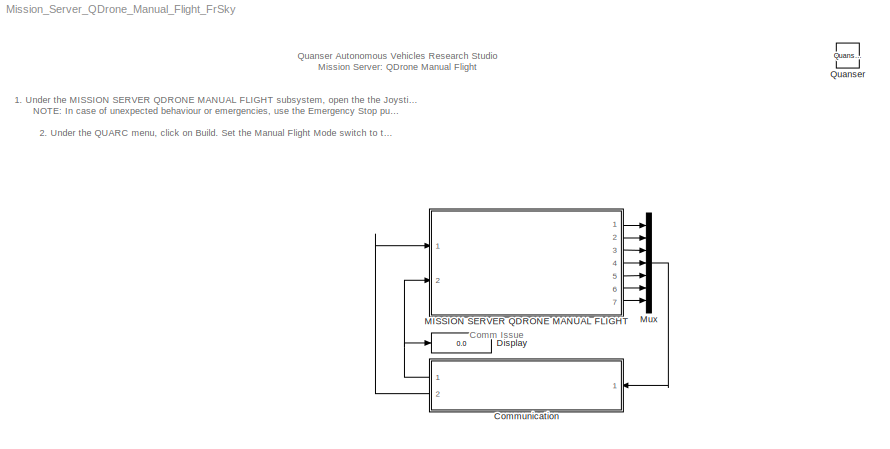
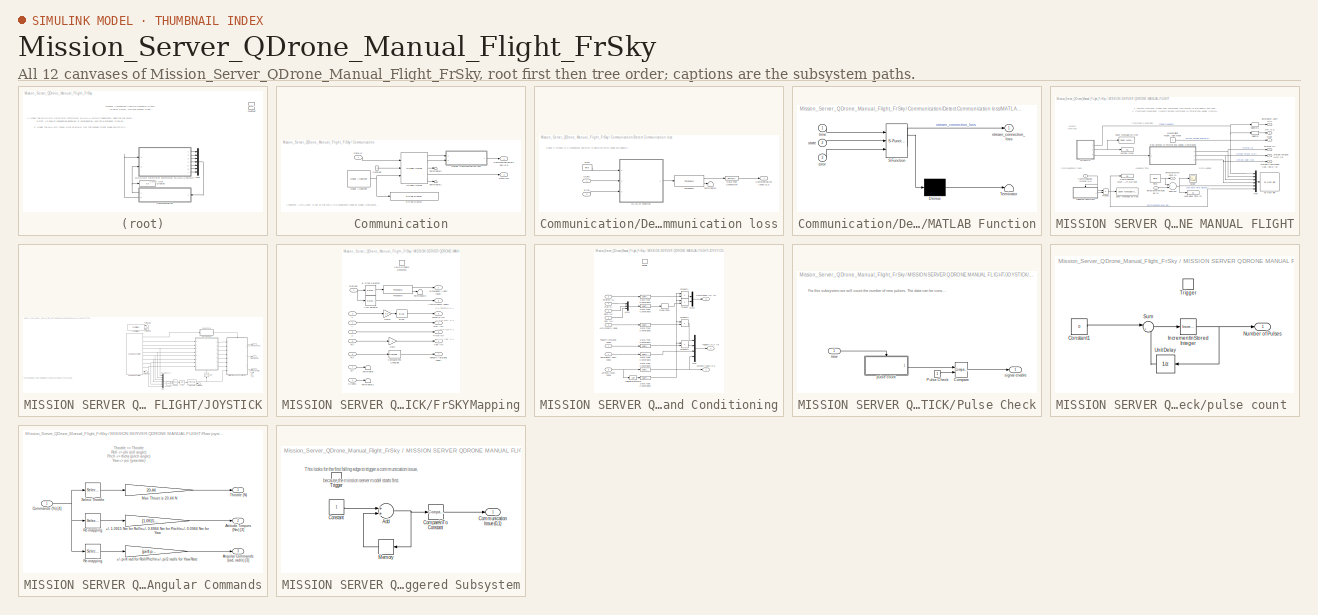
[diagram: thumbnail index - all 12 canvases of the model, root first then tree order]
MODEL Mission_Server_QDrone_Manual_Flight_FrSky
KIND model
BLOCK [SubSystem] Communication
  Ports = [1, 2]
  RequestExecContextInheritance = off
  SID = 3974
BLOCK [Outport] Communication/Communication\nIssue (0,1)
  IconDisplay = Port number
  SID = 4276
BLOCK [Constant] Communication/Constant
  SID = 3844
BLOCK [Inport] Communication/Data In
  IconDisplay = Port number
  SID = 3975
BLOCK [Outport] Communication/Data Out
  IconDisplay = Port number
  Port = 2
  SID = 3978
BLOCK [SubSystem] Communication/Detect Communication loss
  Ports = [2, 1]
  RequestExecContextInheritance = off
  SID = 3979
BLOCK [Outport] Communication/Detect Communication loss/Communication Issue (0,1)
  IconDisplay = Port number
  SID = 3987
BLOCK [DataTypeConversion] Communication/Detect Communication loss/Data Type Conversion
  RndMeth = Floor
  SID = 3982
  SaturateOnIntegerOverflow = off
BLOCK [Inport] Communication/Detect Communication loss/Error
  IconDisplay = Port number
  Port = 2
  SID = 3981
BLOCK [SubSystem] Communication/Detect Communication loss/MATLAB Function
  ErrorFcn = Stateflow.Translate.translate
  PermitHierarchicalResolution = ExplicitOnly
  Ports = [3, 1]
  RequestExecContextInheritance = off
  SFBlockType = MATLAB Function
  SID = 3983
  TreatAsAtomicUnit = on
BLOCK [Demux] Communication/Detect Communication loss/MATLAB Function/ Demux 
  DisplayOption = bar
  Outputs = 1
  Ports = [1, 1]
  SID = 3983::65
BLOCK [S-Function] Communication/Detect Communication loss/MATLAB Function/ SFunction 
  EnableBusSupport = off
  FunctionName = sf_sfun
  PortCounts = [3 2]
  Ports = [3, 2]
  SFcnIsStateOwnerBlock = off
  SFunctionDeploymentMode = off
  SID = 3983::64
  Tag = Stateflow S-Function Mission_Server_QDrone_Manual_Flight_FrSky 3
BLOCK [Terminator] Communication/Detect Communication loss/MATLAB Function/ Terminator 
  SID = 3983::66
BLOCK [Inport] Communication/Detect Communication loss/MATLAB Function/error
  IconDisplay = Port number
  Port = 3
  SID = 3983::23
BLOCK [Inport] Communication/Detect Communication loss/MATLAB Function/state
  IconDisplay = Port number
  Port = 2
  SID = 3983::22
BLOCK [Outport] Communication/Detect Communication loss/MATLAB Function/stream_connection_loss
  IconDisplay = Port number
  SID = 3983::5
BLOCK [Inport] Communication/Detect Communication loss/MATLAB Function/time
  IconDisplay = Port number
  SID = 3983::1
BLOCK [Inport] Communication/Detect Communication loss/State
  IconDisplay = Port number
  SID = 3980
BLOCK [Terminator] Communication/Detect Communication loss/Terminator2
  SID = 3984
BLOCK [Reference] Communication/Detect Communication loss/Threshold  REF=quarc_library/Discontinuities/Threshold
  Ports = [1, 2]
  SID = 3985
  SourceBlock = quarc_library/Discontinuities/Threshold
  SourceProductName = QUARC Targets
  SourceType = Threshold
  duration = 0.1
  operator = >=
  param_src = Specify via dialog
  threshold = 0.5
BLOCK [Reference] Communication/Detect Communication loss/Time  REF=quarc_library/Sources/Time/Time
  MultiThreadCoSim = auto
  Ports = [0, 1]
  SID = 3986
  SourceBlock = quarc_library/Sources/Time/Time
  SourceProductName = QUARC Targets
  SourceType = Time
  sample_time = qc_get_step_size
  time_source = Wall clock
BLOCK [Reference] Communication/Model Argument  REF=quarc_library/Sources/Signals/Model Argument
  AttributesFormatString = (-%<argument_name>)
  MultiThreadCoSim = auto
  Ports = [0, 1]
  SID = 3845
  SourceBlock = quarc_library/Sources/Signals/Model Argument
  SourceProductName = QUARC Targets
  SourceType = Model Argument
  argument_name = URI_Host
  data_type = char
  data_type_mode = Specify via dialog
  default_value = 0
  has_value = on
  max_length = 80
  variable_size = off
BLOCK [Reference] Communication/Stream Server  REF=quarc_library/Communications/Basic/Stream Server
  MultiThreadCoSim = auto
  Ports = [3, 5]
  SID = 3861
  SourceBlock = quarc_library/Communications/Basic/Stream Server
  SourceProductName = QUARC Targets
  SourceType = Stream Server
  active = off
  apply_uri_to_all_configs = off
  byte_order = little endian (Intel - LSB first)
  data_type = Inherited via back propagation
  default_value = zeros(1,2)
  implementation = Use blocking I/O in a separate thread
  max_dimensions = -1
  optimization = Minimum latency
  receive_buffer_size = 1460
  receive_dimensions = off
  receive_fifo_size = 1000
  receive_options = Receive most recent data
  receive_priority = 0
  sample_time = qc_get_step_size
  send_buffer_size = 1460
  send_dimensions = off
  send_fifo_size = 1000
  send_options = Send most recent data
  send_priority = 0
  type_expr = BusObject
  uri = tcpip://localhost:18877
  uri_source = External input port
BLOCK [Reference] Communication/String Display   REF=quarc_library/Strings/String Display
  MultiThreadCoSim = auto
  Ports = [1]
  SID = 3862
  SourceBlock = quarc_library/Strings/String Display
  SourceProductName = QUARC Targets
  SourceType = String Display
  alignment = center
  display_mode = Single line
  sample_time = -1
  use_new = off
BLOCK [Terminator] Communication/Terminator1
  SID = 3863
BLOCK [Terminator] Communication/Terminator2
  SID = 3864
BLOCK [Display] Display
  Decimation = 1
  Ports = [1]
  SID = 4419
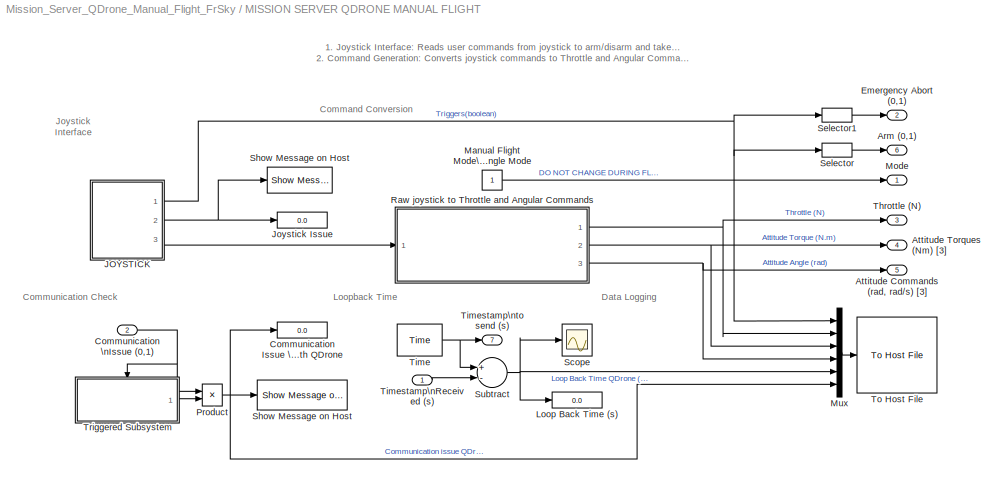
BLOCK [SubSystem] MISSION SERVER QDRONE MANUAL FLIGHT
  Ports = [2, 7]
  RequestExecContextInheritance = off
  SID = 4279
BLOCK [Outport] MISSION SERVER QDRONE MANUAL FLIGHT/Arm (0,1)
  IconDisplay = Port number
  Port = 6
  SID = 4405
BLOCK [Outport] MISSION SERVER QDRONE MANUAL FLIGHT/Attitude Commands (rad, rad//s) [3]
  IconDisplay = Port number
  Port = 5
  SID = 4404
BLOCK [Outport] MISSION SERVER QDRONE MANUAL FLIGHT/Attitude Torques (Nm) [3]
  IconDisplay = Port number
  Port = 4
  SID = 4440
BLOCK [Display] MISSION SERVER QDRONE MANUAL FLIGHT/Communication Issue \nwith QDrone
  Decimation = 1
  Ports = [1]
  SID = 4282
BLOCK [Inport] MISSION SERVER QDRONE MANUAL FLIGHT/Communication \nIssue (0,1)
  IconDisplay = Port number
  Port = 2
  SID = 4281
BLOCK [Outport] MISSION SERVER QDRONE MANUAL FLIGHT/Emergency Abort (0,1)
  IconDisplay = Port number
  Port = 2
  SID = 4402
BLOCK [SubSystem] MISSION SERVER QDRONE MANUAL FLIGHT/JOYSTICK
  Ports = [0, 3]
  RequestExecContextInheritance = off
  SID = 4558
BLOCK [Logic] MISSION SERVER QDRONE MANUAL FLIGHT/JOYSTICK/AND
  AllPortsSameDT = off
  Inputs = 1
  OutDataTypeStr = boolean
  Ports = [1, 1]
  SID = 4559
BLOCK [Outport] MISSION SERVER QDRONE MANUAL FLIGHT/JOYSTICK/Commands (%) [4]
  IconDisplay = Port number
  Port = 3
  SID = 4646
BLOCK [Reference] MISSION SERVER QDRONE MANUAL FLIGHT/JOYSTICK/Compare  REF=quarc_library/Logic Operations/Compare
  MultiThreadCoSim = auto
  Ports = [2, 1]
  SID = 4560
  SourceBlock = quarc_library/Logic Operations/Compare
  SourceProductName = QUARC Targets
  SourceType = Compare
  operator = ==
  output_data_type = boolean
BLOCK [Constant] MISSION SERVER QDRONE MANUAL FLIGHT/JOYSTICK/Constant
  SID = 4561
  Value = -1*ones(1,6)
BLOCK [SubSystem] MISSION SERVER QDRONE MANUAL FLIGHT/JOYSTICK/FrSKYMapping
  Ports = [8, 7, 1]
  RequestExecContextInheritance = off
  SID = 4562
BLOCK [Selector] MISSION SERVER QDRONE MANUAL FLIGHT/JOYSTICK/FrSKYMapping/Arm selector
  IndexOptions = Index vector (dialog)
  Indices = [2]
  InputPortWidth = 32
  OutputSizes = 1
  Ports = [1, 1]
  SID = 4572
BLOCK [Outport] MISSION SERVER QDRONE MANUAL FLIGHT/JOYSTICK/FrSKYMapping/Arm//Disarm (bool) 
  IconDisplay = Port number
  Port = 6
  SID = 4587
BLOCK [Bias] MISSION SERVER QDRONE MANUAL FLIGHT/JOYSTICK/FrSKYMapping/Bias
  Bias = 0.5
  SID = 4573
  SaturateOnIntegerOverflow = off
BLOCK [Inport] MISSION SERVER QDRONE MANUAL FLIGHT/JOYSTICK/FrSKYMapping/Buttons
  IconDisplay = Port number
  SID = 4563
BLOCK [Reference] MISSION SERVER QDRONE MANUAL FLIGHT/JOYSTICK/FrSKYMapping/Compare\nTo Constant  REF=simulink/Logic and Bit\nOperations/Compare\nTo Constant
  OutDataTypeStr = boolean
  Ports = [1, 1]
  SID = 4574
  SourceBlock = simulink/Logic and Bit\nOperations/Compare\nTo Constant
  SourceProductBaseCode = SL
  SourceType = Compare To Constant
  ZeroCross = on
  const = -0.5
  relop = >=
BLOCK [Selector] MISSION SERVER QDRONE MANUAL FLIGHT/JOYSTICK/FrSKYMapping/E-Stop Selector
  IndexOptions = Index vector (dialog)
  Indices = [1]
  InputPortWidth = 32
  OutputSizes = 1
  Ports = [1, 1]
  SID = 4575
BLOCK [Outport] MISSION SERVER QDRONE MANUAL FLIGHT/JOYSTICK/FrSKYMapping/Emergency Abort (bool)
  IconDisplay = Port number
  SID = 4582
BLOCK [Gain] MISSION SERVER QDRONE MANUAL FLIGHT/JOYSTICK/FrSKYMapping/Gain
  Gain = -1
  OutDataTypeStr = Inherit: Inherit via internal rule
  ParamDataTypeStr = Inherit: Inherit via internal rule
  SID = 4576
  SaturateOnIntegerOverflow = off
BLOCK [Gain] MISSION SERVER QDRONE MANUAL FLIGHT/JOYSTICK/FrSKYMapping/Gain1
  Gain = 0.5
  OutDataTypeStr = Inherit: Inherit via internal rule
  ParamDataTypeStr = Inherit: Inherit via internal rule
  SID = 4577
  SaturateOnIntegerOverflow = off
BLOCK [Outport] MISSION SERVER QDRONE MANUAL FLIGHT/JOYSTICK/FrSKYMapping/Pitch (%)
  IconDisplay = Port number
  Port = 5
  SID = 4586
BLOCK [Outport] MISSION SERVER QDRONE MANUAL FLIGHT/JOYSTICK/FrSKYMapping/Roll (%)
  IconDisplay = Port number
  Port = 4
  SID = 4585
BLOCK [Inport] MISSION SERVER QDRONE MANUAL FLIGHT/JOYSTICK/FrSKYMapping/Rx
  IconDisplay = Port number
  Port = 6
  SID = 4568
BLOCK [Inport] MISSION SERVER QDRONE MANUAL FLIGHT/JOYSTICK/FrSKYMapping/Ry
  IconDisplay = Port number
  Port = 7
  SID = 4569
BLOCK [Inport] MISSION SERVER QDRONE MANUAL FLIGHT/JOYSTICK/FrSKYMapping/Rz
  IconDisplay = Port number
  Port = 8
  SID = 4570
BLOCK [Inport] MISSION SERVER QDRONE MANUAL FLIGHT/JOYSTICK/FrSKYMapping/Sliders
  IconDisplay = Port number
  Port = 2
  SID = 4564
BLOCK [Outport] MISSION SERVER QDRONE MANUAL FLIGHT/JOYSTICK/FrSKYMapping/Takeoff//Autoland (bool)
  IconDisplay = Port number
  Port = 7
  SID = 4588
BLOCK [Terminator] MISSION SERVER QDRONE MANUAL FLIGHT/JOYSTICK/FrSKYMapping/Terminator
  SID = 4578
BLOCK [Terminator] MISSION SERVER QDRONE MANUAL FLIGHT/JOYSTICK/FrSKYMapping/Terminator1
  SID = 4579
BLOCK [Terminator] MISSION SERVER QDRONE MANUAL FLIGHT/JOYSTICK/FrSKYMapping/Terminator2
  SID = 4580
BLOCK [Reference] MISSION SERVER QDRONE MANUAL FLIGHT/JOYSTICK/FrSKYMapping/Threshold  REF=quarc_library/Discontinuities/Threshold
  Ports = [1, 2]
  SID = 4581
  SourceBlock = quarc_library/Discontinuities/Threshold
  SourceProductName = QUARC Targets
  SourceType = Threshold
  duration = 0.2
  operator = >=
  param_src = Specify via dialog
  threshold = 0.5
BLOCK [Outport] MISSION SERVER QDRONE MANUAL FLIGHT/JOYSTICK/FrSKYMapping/Throttle (%)
  IconDisplay = Port number
  Port = 3
  SID = 4584
BLOCK [EnablePort] MISSION SERVER QDRONE MANUAL FLIGHT/JOYSTICK/FrSKYMapping/Valid Signals Detected
  Ports = []
  SID = 4571
BLOCK [Outport] MISSION SERVER QDRONE MANUAL FLIGHT/JOYSTICK/FrSKYMapping/Yaw (%)
  IconDisplay = Port number
  Port = 2
  SID = 4583
BLOCK [Inport] MISSION SERVER QDRONE MANUAL FLIGHT/JOYSTICK/FrSKYMapping/x
  IconDisplay = Port number
  Port = 3
  SID = 4565
BLOCK [Inport] MISSION SERVER QDRONE MANUAL FLIGHT/JOYSTICK/FrSKYMapping/y
  IconDisplay = Port number
  Port = 4
  SID = 4566
BLOCK [Inport] MISSION SERVER QDRONE MANUAL FLIGHT/JOYSTICK/FrSKYMapping/z
  IconDisplay = Port number
  Port = 5
  SID = 4567
BLOCK [Reference] MISSION SERVER QDRONE MANUAL FLIGHT/JOYSTICK/Host Game Controller  REF=quarc_library/Devices/Peripherals/Host/Host Game Controller
  MultiThreadCoSim = auto
  Ports = [0, 10]
  SID = 4593
  SourceBlock = quarc_library/Devices/Peripherals/Host/Host Game Controller
  SourceProductName = QUARC Targets
  SourceType = Host Game Controller
  auto_center = off
  buffer_size = 20
  controller = 1
  deadzone = []
  debug_mode = off
  enabled = on
  object_name = Host-1
  sample_time = qc_get_step_size
  saturation = []
BLOCK [Reference] MISSION SERVER QDRONE MANUAL FLIGHT/JOYSTICK/Host Initialize  REF=quarc_library/Devices/Peripherals/Host/Host Initialize
  MultiThreadCoSim = auto
  Ports = [0, 2]
  SID = 4594
  SourceBlock = quarc_library/Devices/Peripherals/Host/Host Initialize
  SourceProductName = QUARC Targets
  SourceType = Host Initialize
  active = on
  apply_uri_to_all_configs = on
  object_name = Host-1
  receive_buffer_size = 1000
  run_client = on
  sample_time = qc_get_step_size
  send_buffer_size = 1000
  thread_priority = 0
  uri = tcpip://localhost:18001
  uri_source = Use external mode communications
  use_window = off
  window_position = []
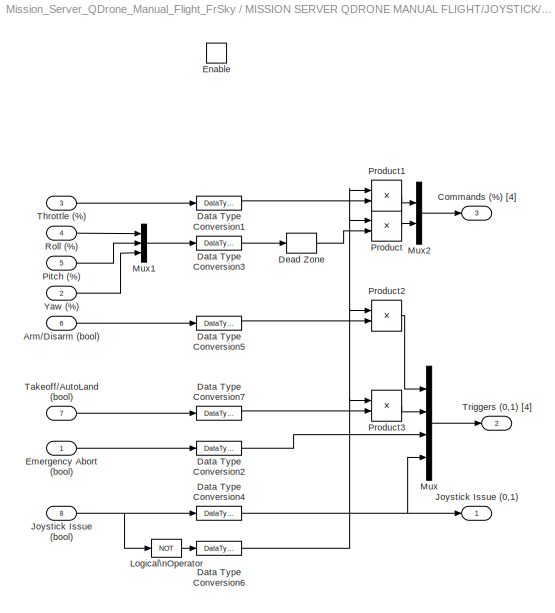
BLOCK [SubSystem] MISSION SERVER QDRONE MANUAL FLIGHT/JOYSTICK/Initialization\nand Conditioning
  Ports = [8, 3, 1]
  RequestExecContextInheritance = off
  SID = 4595
  TreatAsAtomicUnit = on
BLOCK [Inport] MISSION SERVER QDRONE MANUAL FLIGHT/JOYSTICK/Initialization\nand Conditioning/Arm//Disarm (bool)
  IconDisplay = Port number
  Port = 6
  SID = 4601
BLOCK [Outport] MISSION SERVER QDRONE MANUAL FLIGHT/JOYSTICK/Initialization\nand Conditioning/Commands (%) [4]
  IconDisplay = Port number
  InitialOutput = 0
  Port = 3
  SID = 4623
BLOCK [DataTypeConversion] MISSION SERVER QDRONE MANUAL FLIGHT/JOYSTICK/Initialization\nand Conditioning/Data Type Conversion1
  RndMeth = Floor
  SID = 4605
  SaturateOnIntegerOverflow = off
BLOCK [DataTypeConversion] MISSION SERVER QDRONE MANUAL FLIGHT/JOYSTICK/Initialization\nand Conditioning/Data Type Conversion2
  RndMeth = Floor
  SID = 4606
  SaturateOnIntegerOverflow = off
BLOCK [DataTypeConversion] MISSION SERVER QDRONE MANUAL FLIGHT/JOYSTICK/Initialization\nand Conditioning/Data Type Conversion3
  RndMeth = Floor
  SID = 4607
  SaturateOnIntegerOverflow = off
BLOCK [DataTypeConversion] MISSION SERVER QDRONE MANUAL FLIGHT/JOYSTICK/Initialization\nand Conditioning/Data Type Conversion4
  RndMeth = Floor
  SID = 4608
  SaturateOnIntegerOverflow = off
BLOCK [DataTypeConversion] MISSION SERVER QDRONE MANUAL FLIGHT/JOYSTICK/Initialization\nand Conditioning/Data Type Conversion5
  RndMeth = Floor
  SID = 4609
  SaturateOnIntegerOverflow = off
BLOCK [DataTypeConversion] MISSION SERVER QDRONE MANUAL FLIGHT/JOYSTICK/Initialization\nand Conditioning/Data Type Conversion6
  RndMeth = Floor
  SID = 4610
  SaturateOnIntegerOverflow = off
BLOCK [DataTypeConversion] MISSION SERVER QDRONE MANUAL FLIGHT/JOYSTICK/Initialization\nand Conditioning/Data Type Conversion7
  RndMeth = Floor
  SID = 4611
  SaturateOnIntegerOverflow = off
BLOCK [DeadZone] MISSION SERVER QDRONE MANUAL FLIGHT/JOYSTICK/Initialization\nand Conditioning/Dead Zone
  LowerValue = -0.01
  SID = 4612
  UpperValue = 0.01
BLOCK [Inport] MISSION SERVER QDRONE MANUAL FLIGHT/JOYSTICK/Initialization\nand Conditioning/Emergency Abort (bool)
  IconDisplay = Port number
  SID = 4596
BLOCK [EnablePort] MISSION SERVER QDRONE MANUAL FLIGHT/JOYSTICK/Initialization\nand Conditioning/Enable
  Ports = []
  SID = 4604
  StatesWhenEnabling = reset
BLOCK [Outport] MISSION SERVER QDRONE MANUAL FLIGHT/JOYSTICK/Initialization\nand Conditioning/Joystick Issue (0,1)
  IconDisplay = Port number
  InitialOutput = 0
  SID = 4621
BLOCK [Inport] MISSION SERVER QDRONE MANUAL FLIGHT/JOYSTICK/Initialization\nand Conditioning/Joystick Issue (bool)
  IconDisplay = Port number
  Port = 8
  SID = 4603
BLOCK [Logic] MISSION SERVER QDRONE MANUAL FLIGHT/JOYSTICK/Initialization\nand Conditioning/Logical\nOperator
  AllPortsSameDT = off
  Operator = NOT
  OutDataTypeStr = boolean
  Ports = [1, 1]
  SID = 4613
BLOCK [Mux] MISSION SERVER QDRONE MANUAL FLIGHT/JOYSTICK/Initialization\nand Conditioning/Mux
  DisplayOption = bar
  Ports = [4, 1]
  SID = 4614
BLOCK [Mux] MISSION SERVER QDRONE MANUAL FLIGHT/JOYSTICK/Initialization\nand Conditioning/Mux1
  DisplayOption = bar
  Inputs = 3
  Ports = [3, 1]
  SID = 4615
BLOCK [Mux] MISSION SERVER QDRONE MANUAL FLIGHT/JOYSTICK/Initialization\nand Conditioning/Mux2
  DisplayOption = bar
  Inputs = 2
  Ports = [2, 1]
  SID = 4616
BLOCK [Inport] MISSION SERVER QDRONE MANUAL FLIGHT/JOYSTICK/Initialization\nand Conditioning/Pitch (%)
  IconDisplay = Port number
  Port = 5
  SID = 4600
BLOCK [Product] MISSION SERVER QDRONE MANUAL FLIGHT/JOYSTICK/Initialization\nand Conditioning/Product
  InputSameDT = off
  OutDataTypeStr = Inherit: Inherit via internal rule
  Ports = [2, 1]
  RndMeth = Floor
  SID = 4617
  SaturateOnIntegerOverflow = off
BLOCK [Product] MISSION SERVER QDRONE MANUAL FLIGHT/JOYSTICK/Initialization\nand Conditioning/Product1
  InputSameDT = off
  OutDataTypeStr = Inherit: Inherit via internal rule
  Ports = [2, 1]
  RndMeth = Floor
  SID = 4618
  SaturateOnIntegerOverflow = off
BLOCK [Product] MISSION SERVER QDRONE MANUAL FLIGHT/JOYSTICK/Initialization\nand Conditioning/Product2
  InputSameDT = off
  OutDataTypeStr = Inherit: Inherit via internal rule
  Ports = [2, 1]
  RndMeth = Floor
  SID = 4619
  SaturateOnIntegerOverflow = off
BLOCK [Product] MISSION SERVER QDRONE MANUAL FLIGHT/JOYSTICK/Initialization\nand Conditioning/Product3
  InputSameDT = off
  OutDataTypeStr = Inherit: Inherit via internal rule
  Ports = [2, 1]
  RndMeth = Floor
  SID = 4620
  SaturateOnIntegerOverflow = off
BLOCK [Inport] MISSION SERVER QDRONE MANUAL FLIGHT/JOYSTICK/Initialization\nand Conditioning/Roll (%)
  IconDisplay = Port number
  Port = 4
  SID = 4599
BLOCK [Inport] MISSION SERVER QDRONE MANUAL FLIGHT/JOYSTICK/Initialization\nand Conditioning/Takeoff//AutoLand (bool)
  IconDisplay = Port number
  Port = 7
  SID = 4602
BLOCK [Inport] MISSION SERVER QDRONE MANUAL FLIGHT/JOYSTICK/Initialization\nand Conditioning/Throttle (%)
  IconDisplay = Port number
  Port = 3
  SID = 4598
BLOCK [Outport] MISSION SERVER QDRONE MANUAL FLIGHT/JOYSTICK/Initialization\nand Conditioning/Triggers (0,1) [4]
  IconDisplay = Port number
  InitialOutput = 0
  Port = 2
  SID = 4622
BLOCK [Inport] MISSION SERVER QDRONE MANUAL FLIGHT/JOYSTICK/Initialization\nand Conditioning/Yaw (%)
  IconDisplay = Port number
  Port = 2
  SID = 4597
BLOCK [Outport] MISSION SERVER QDRONE MANUAL FLIGHT/JOYSTICK/Joystick Issue (0,1)
  IconDisplay = Port number
  Port = 2
  SID = 4645
BLOCK [Mux] MISSION SERVER QDRONE MANUAL FLIGHT/JOYSTICK/Mux
  DisplayOption = bar
  Inputs = 6
  Ports = [6, 1]
  SID = 4624
BLOCK [Logic] MISSION SERVER QDRONE MANUAL FLIGHT/JOYSTICK/NOT
  AllPortsSameDT = off
  IconShape = distinctive
  Operator = NOT
  OutDataTypeStr = boolean
  Ports = [1, 1]
  SID = 4625
BLOCK [SubSystem] MISSION SERVER QDRONE MANUAL FLIGHT/JOYSTICK/Pulse Check
  Ports = [1, 1]
  RequestExecContextInheritance = off
  SID = 4651
  TreatAsAtomicUnit = on
BLOCK [Reference] MISSION SERVER QDRONE MANUAL FLIGHT/JOYSTICK/Pulse Check/Compare  REF=quarc_library/Logic Operations/Compare
  MultiThreadCoSim = auto
  Ports = [2, 1]
  SID = 4653
  SourceBlock = quarc_library/Logic Operations/Compare
  SourceProductName = QUARC Targets
  SourceType = Compare
  operator = >=
  output_data_type = boolean
BLOCK [Constant] MISSION SERVER QDRONE MANUAL FLIGHT/JOYSTICK/Pulse Check/Pulse Check
  SID = 4654
BLOCK [Inport] MISSION SERVER QDRONE MANUAL FLIGHT/JOYSTICK/Pulse Check/new
  IconDisplay = Port number
  SID = 4652
BLOCK [SubSystem] MISSION SERVER QDRONE MANUAL FLIGHT/JOYSTICK/Pulse Check/pulse count 
  Ports = [0, 1, 0, 1]
  RequestExecContextInheritance = off
  SID = 4655
  TreatAsAtomicUnit = on
BLOCK [Constant] MISSION SERVER QDRONE MANUAL FLIGHT/JOYSTICK/Pulse Check/pulse count /Constant1
  SID = 4657
  Value = 0
BLOCK [Reference] MISSION SERVER QDRONE MANUAL FLIGHT/JOYSTICK/Pulse Check/pulse count /Increment\nStored Integer  REF=simulink/Additional Math\n& Discrete/Additional Math:\nIncrement - Decrement/Increment\nStored Integer
  Ports = [1, 1]
  SID = 4658
  SourceBlock = simulink/Additional Math\n& Discrete/Additional Math:\nIncrement - Decrement/Increment\nStored Integer
  SourceProductBaseCode = SL
  SourceType = Stored Integer Value Increment
BLOCK [Outport] MISSION SERVER QDRONE MANUAL FLIGHT/JOYSTICK/Pulse Check/pulse count /Number of Pulses
  IconDisplay = Port number
  SID = 4661
BLOCK [Sum] MISSION SERVER QDRONE MANUAL FLIGHT/JOYSTICK/Pulse Check/pulse count /Sum
  IconShape = round
  InputSameDT = off
  Inputs = |++
  OutDataTypeStr = Inherit: Inherit via internal rule
  Ports = [2, 1]
  SID = 4659
  SaturateOnIntegerOverflow = off
BLOCK [TriggerPort] MISSION SERVER QDRONE MANUAL FLIGHT/JOYSTICK/Pulse Check/pulse count /Trigger
  Ports = []
  SID = 4656
  StatesWhenEnabling = held
  TriggerType = either
  VariantControl = Variant
BLOCK [UnitDelay] MISSION SERVER QDRONE MANUAL FLIGHT/JOYSTICK/Pulse Check/pulse count /Unit Delay
  InputProcessing = Elements as channels (sample based)
  SID = 4660
  SampleTime = -1
BLOCK [Outport] MISSION SERVER QDRONE MANUAL FLIGHT/JOYSTICK/Pulse Check/signal enable
  IconDisplay = Port number
  InitialOutput = 0
  SID = 4662
BLOCK [Terminator] MISSION SERVER QDRONE MANUAL FLIGHT/JOYSTICK/Terminator
  SID = 4639
BLOCK [Terminator] MISSION SERVER QDRONE MANUAL FLIGHT/JOYSTICK/Terminator1
  SID = 4640
BLOCK [Terminator] MISSION SERVER QDRONE MANUAL FLIGHT/JOYSTICK/Terminator2
  SID = 4641
BLOCK [Terminator] MISSION SERVER QDRONE MANUAL FLIGHT/JOYSTICK/Terminator4
  SID = 4642
BLOCK [Reference] MISSION SERVER QDRONE MANUAL FLIGHT/JOYSTICK/Threshold  REF=quarc_library/Discontinuities/Threshold
  Ports = [1, 2]
  SID = 4643
  SourceBlock = quarc_library/Discontinuities/Threshold
  SourceProductName = QUARC Targets
  SourceType = Threshold
  duration = 0.2
  operator = >=
  param_src = Specify via dialog
  threshold = 0.5
BLOCK [Outport] MISSION SERVER QDRONE MANUAL FLIGHT/JOYSTICK/Triggers (0,1) [4]
  IconDisplay = Port number
  SID = 4644
BLOCK [Display] MISSION SERVER QDRONE MANUAL FLIGHT/Joystick Issue
  Decimation = 1
  Ports = [1]
  SID = 4373
BLOCK [Display] MISSION SERVER QDRONE MANUAL FLIGHT/Loop Back Time (s)
  Decimation = 1
  Ports = [1]
  SID = 4374
BLOCK [Constant] MISSION SERVER QDRONE MANUAL FLIGHT/Manual Flight Mode\n1 - Torque Mode,   0 - Angle Mode
  SID = 4436
BLOCK [Outport] MISSION SERVER QDRONE MANUAL FLIGHT/Mode
  IconDisplay = Port number
  SID = 4441
BLOCK [Mux] MISSION SERVER QDRONE MANUAL FLIGHT/Mux
  DisplayOption = bar
  Inputs = 6
  Ports = [6, 1]
  SID = 4375
BLOCK [Product] MISSION SERVER QDRONE MANUAL FLIGHT/Product
  InputSameDT = off
  OutDataTypeStr = Inherit: Inherit via internal rule
  Ports = [2, 1]
  RndMeth = Floor
  SID = 4376
  SaturateOnIntegerOverflow = off
BLOCK [SubSystem] MISSION SERVER QDRONE MANUAL FLIGHT/Raw joystick to Throttle and Angular Commands
  Ports = [1, 3]
  RequestExecContextInheritance = off
  SID = 4377
BLOCK [Selector] MISSION SERVER QDRONE MANUAL FLIGHT/Raw joystick to Throttle and Angular Commands/ Re-mapping 
  IndexOptions = Index vector (dialog)
  Indices = [2 3 4]
  InputPortWidth = 4
  OutputSizes = 1
  Ports = [1, 1]
  SID = 4438
BLOCK [Gain] MISSION SERVER QDRONE MANUAL FLIGHT/Raw joystick to Throttle and Angular Commands/+//- 1.0915 Nm for Roll\n+//- 0.8984 Nm for Pitch\n+//- 0.0984 Nm for Yaw
  Gain = [1.0915 0.8984 0.0984]
  OutDataTypeStr = Inherit: Inherit via internal rule
  ParamDataTypeStr = Inherit: Inherit via internal rule
  SID = 4437
  SaturateOnIntegerOverflow = off
BLOCK [Gain] MISSION SERVER QDRONE MANUAL FLIGHT/Raw joystick to Throttle and Angular Commands/+//- pi//4 rad for Roll//Pitch\n+//- pi//2 rad//s for Yaw Rate
  Gain = [pi/4 pi/4 pi/2]
  OutDataTypeStr = Inherit: Inherit via internal rule
  ParamDataTypeStr = Inherit: Inherit via internal rule
  SID = 4379
  SaturateOnIntegerOverflow = off
BLOCK [Outport] MISSION SERVER QDRONE MANUAL FLIGHT/Raw joystick to Throttle and Angular Commands/Angular Commands (rad, rad//s) [3]
  IconDisplay = Port number
  Port = 3
  SID = 4384
BLOCK [Outport] MISSION SERVER QDRONE MANUAL FLIGHT/Raw joystick to Throttle and Angular Commands/Attitude Torques (Nm) [3]
  IconDisplay = Port number
  Port = 2
  SID = 4439
BLOCK [Inport] MISSION SERVER QDRONE MANUAL FLIGHT/Raw joystick to Throttle and Angular Commands/Commands (%) [4]
  IconDisplay = Port number
  SID = 4378
BLOCK [Gain] MISSION SERVER QDRONE MANUAL FLIGHT/Raw joystick to Throttle and Angular Commands/Max Thrust is 20.44 N
  Gain = 20.44
  OutDataTypeStr = Inherit: Inherit via internal rule
  ParamDataTypeStr = Inherit: Inherit via internal rule
  SID = 4380
  SaturateOnIntegerOverflow = off
BLOCK [Selector] MISSION SERVER QDRONE MANUAL FLIGHT/Raw joystick to Throttle and Angular Commands/Re-mapping
  IndexOptions = Index vector (dialog)
  Indices = [2 3 4]
  InputPortWidth = 4
  OutputSizes = 1
  Ports = [1, 1]
  SID = 4381
BLOCK [Selector] MISSION SERVER QDRONE MANUAL FLIGHT/Raw joystick to Throttle and Angular Commands/Select Throttle
  IndexOptions = Index vector (dialog)
  Indices = [1]
  InputPortWidth = 4
  OutputSizes = 1
  Ports = [1, 1]
  SID = 4382
BLOCK [Outport] MISSION SERVER QDRONE MANUAL FLIGHT/Raw joystick to Throttle and Angular Commands/Throttle (N)
  IconDisplay = Port number
  SID = 4383
BLOCK [Scope] MISSION SERVER QDRONE MANUAL FLIGHT/Scope
  Floating = off
  NumInputPorts = 1
  Ports = [1]
  SID = 4386
  ScopeSpecificationString = Simulink.scopes.TimeScopeBlockCfg('CurrentConfiguration', extmgr.ConfigurationSet(extmgr.Configuration('Core','General UI',true),extmgr.Configuration('Core','Source UI',true),extmgr.Configuration('Sources','WiredSimulink',true),extmgr.Configuration('Visuals','Time Domain',true),extmgr.Configuration('Tools','Plot Navigation',true),extmgr.Configuration('Tools','Measurements',true)),'Version','2020a'...<+1ch>
BLOCK [Selector] MISSION SERVER QDRONE MANUAL FLIGHT/Selector
  IndexOptions = Index vector (dialog)
  Indices = [1]
  InputPortWidth = 4
  OutputSizes = 1
  Ports = [1, 1]
  SID = 4387
BLOCK [Selector] MISSION SERVER QDRONE MANUAL FLIGHT/Selector1
  IndexOptions = Index vector (dialog)
  Indices = [3]
  InputPortWidth = 4
  OutputSizes = 1
  Ports = [1, 1]
  SID = 4388
BLOCK [Reference] MISSION SERVER QDRONE MANUAL FLIGHT/Show Message on Host  REF=quarc_library/Sinks/Error Handling/Show Message on Host
  AttributesFormatString = \"%<message>\"
  MultiThreadCoSim = auto
  Ports = [1]
  SID = 4389
  SourceBlock = quarc_library/Sinks/Error Handling/Show Message on Host
  SourceProductName = QUARC Targets
  SourceType = Host Show Message
  message = Mission Server: Communication Issue with QDrone
  message_icon = Warning
  message_type = Fixed error message
BLOCK [Reference] MISSION SERVER QDRONE MANUAL FLIGHT/Show Message on Host   REF=quarc_library/Sinks/Error Handling/Show Message on Host
  AttributesFormatString = \"%<message>\"
  MultiThreadCoSim = auto
  Ports = [1]
  SID = 4390
  SourceBlock = quarc_library/Sinks/Error Handling/Show Message on Host
  SourceProductName = QUARC Targets
  SourceType = Host Show Message
  message = Mission Server: Joystick Disconnected
  message_icon = Warning
  message_type = Fixed error message
BLOCK [Sum] MISSION SERVER QDRONE MANUAL FLIGHT/Subtract
  InputSameDT = off
  Inputs = +-
  OutDataTypeStr = Inherit: Inherit via internal rule
  Ports = [2, 1]
  SID = 4391
  SaturateOnIntegerOverflow = off
BLOCK [Outport] MISSION SERVER QDRONE MANUAL FLIGHT/Throttle (N)
  IconDisplay = Port number
  Port = 3
  SID = 4403
BLOCK [Reference] MISSION SERVER QDRONE MANUAL FLIGHT/Time  REF=quarc_library/Sources/Time/Time
  MultiThreadCoSim = auto
  Ports = [0, 1]
  SID = 4392
  SourceBlock = quarc_library/Sources/Time/Time
  SourceProductName = QUARC Targets
  SourceType = Time
  sample_time = qc_get_step_size
  time_source = Wall clock
BLOCK [Inport] MISSION SERVER QDRONE MANUAL FLIGHT/Timestamp\nReceived (s)
  IconDisplay = Port number
  SID = 4280
BLOCK [Outport] MISSION SERVER QDRONE MANUAL FLIGHT/Timestamp\nto send (s)
  IconDisplay = Port number
  Port = 7
  SID = 4406
BLOCK [Reference] MISSION SERVER QDRONE MANUAL FLIGHT/To Host File  REF=quarc_library/Sinks/To Host/To Host File
  AttributesFormatString = %<final_file_name>
  MultiThreadCoSim = auto
  Ports = [1]
  SID = 4393
  SourceBlock = quarc_library/Sinks/To Host/To Host File
  SourceProductName = QUARC Targets
  SourceType = To Host File
  append = off
  bitrate = 2000000
  decimation = 1
  file_format = MAT-file v.5
  file_name = saved_data/%m/Mission_Server_%{date}_%{time}.mat
  final_file_name = saved_data/Mission_Server_QDrone_Manual_Flight_FrSky/Mission_Server_20-Jan-2022_08-52-31.mat
  options = No header or footer
  sample_time = -1
  variable_name = mission_server_data
BLOCK [SubSystem] MISSION SERVER QDRONE MANUAL FLIGHT/Triggered Subsystem
  Ports = [0, 1, 0, 1]
  RequestExecContextInheritance = off
  SID = 4394
  TreatAsAtomicUnit = on
BLOCK [Sum] MISSION SERVER QDRONE MANUAL FLIGHT/Triggered Subsystem/Add
  InputSameDT = off
  OutDataTypeStr = Inherit: Inherit via internal rule
  Ports = [2, 1]
  SID = 4396
  SaturateOnIntegerOverflow = off
BLOCK [Outport] MISSION SERVER QDRONE MANUAL FLIGHT/Triggered Subsystem/Communication Issue (0,1)
  IconDisplay = Port number
  InitialOutput = 0
  SID = 4400
BLOCK [Reference] MISSION SERVER QDRONE MANUAL FLIGHT/Triggered Subsystem/Compare\nTo Constant  REF=simulink/Logic and Bit\nOperations/Compare\nTo Constant
  OutDataTypeStr = boolean
  Ports = [1, 1]
  SID = 4397
  SourceBlock = simulink/Logic and Bit\nOperations/Compare\nTo Constant
  SourceProductBaseCode = SL
  SourceType = Compare To Constant
  ZeroCross = on
  const = 1
  relop = >=
BLOCK [Constant] MISSION SERVER QDRONE MANUAL FLIGHT/Triggered Subsystem/Constant
  SID = 4398
BLOCK [Memory] MISSION SERVER QDRONE MANUAL FLIGHT/Triggered Subsystem/Memory
  InheritSampleTime = on
  SID = 4399
BLOCK [TriggerPort] MISSION SERVER QDRONE MANUAL FLIGHT/Triggered Subsystem/Trigger
  Ports = []
  SID = 4395
  StatesWhenEnabling = held
  TriggerType = falling
  VariantControl = Variant
BLOCK [Mux] Mux
  DisplayOption = bar
  Inputs = 7
  Ports = [7, 1]
  SID = 4016
BLOCK [Reference] Quanser  REF=quarc_library/Logos/Quanser
  Ports = []
  SID = 3945
  SourceBlock = quarc_library/Logos/Quanser
  SourceProductName = QUARC Targets
  SourceType = Powered by Quanser
ANNOTATION (root): \n \n 1. Under the MISSION SERVER QDRONE MANUAL FLIGHT subsystem, open the the Joystick subsystem, and ensure that the Host Game Controller block's Controller Number parameter is set to SPEKTRUM RECEIVER NOTE : In case of unexpected behaviour or emergencies, use the Emergency Stop push button on the Spektrum Joystick to cut all power to the motors (this will result in the drone falling). \n 2. Und...<+719ch>
ANNOTATION (root): \n \n Quanser Autonomous Vehicles Research Studio Mission Server: QDrone Manual Flight
ANNOTATION (root): Comm Issue
ANNOTATION Communication: \n \n Argument (-URI_Host) is set at the MEX-file arguments found at Model Configuration Properties > Code Generation > Interface \n \n Format: \n tcpip://localhost:18001
ANNOTATION Communication/Detect Communication loss: Check if stream is 2 (connected) and error is positive (error codes are negative). Otherwise issue a communication error.
ANNOTATION MISSION SERVER QDRONE MANUAL FLIGHT: 1. Joystick Interface: Reads user commands from joystick to arm/disarm and takeoff/land the drone.\n2. Command Generation: Converts joystick commands to Throttle and Angular Commands
ANNOTATION MISSION SERVER QDRONE MANUAL FLIGHT: Command Conversion
ANNOTATION MISSION SERVER QDRONE MANUAL FLIGHT: Communication Check
ANNOTATION MISSION SERVER QDRONE MANUAL FLIGHT: Data Logging
ANNOTATION MISSION SERVER QDRONE MANUAL FLIGHT: Joystick \nInterface
ANNOTATION MISSION SERVER QDRONE MANUAL FLIGHT: Loopback Time
ANNOTATION MISSION SERVER QDRONE MANUAL FLIGHT/JOYSTICK: \n \n NOTE: Current release of joystick firmware should read "Quanser V2" which is compatible with the mapping in this model
ANNOTATION MISSION SERVER QDRONE MANUAL FLIGHT/JOYSTICK: Signal Error Check
ANNOTATION MISSION SERVER QDRONE MANUAL FLIGHT/JOYSTICK: Throttle\nRoll\nPitch \nYaw
ANNOTATION MISSION SERVER QDRONE MANUAL FLIGHT/JOYSTICK/FrSKYMapping: -1 <= Pitch <= 1
ANNOTATION MISSION SERVER QDRONE MANUAL FLIGHT/JOYSTICK/FrSKYMapping: -1 <= Roll <= 1
ANNOTATION MISSION SERVER QDRONE MANUAL FLIGHT/JOYSTICK/FrSKYMapping: -1 <= Yaw <= 1
ANNOTATION MISSION SERVER QDRONE MANUAL FLIGHT/JOYSTICK/FrSKYMapping: 0 <= Throttle <= 1
ANNOTATION MISSION SERVER QDRONE MANUAL FLIGHT/JOYSTICK/Pulse Check: \n \n For this subsystem we will count the number of new pulses. The data can be considered enabled once the count of new signals has gone beyond 1. This will enable the Initializing and conditioning subsystem.
ANNOTATION MISSION SERVER QDRONE MANUAL FLIGHT/Raw joystick to Throttle and Angular Commands: Throttle => Throttle\nRoll => phi (roll angle)\nPitch => theta (pitch angle)\nYaw => psi (yaw rate)
ANNOTATION MISSION SERVER QDRONE MANUAL FLIGHT/Triggered Subsystem: This looks for the first falling edge to trigger a communication issue, \nbecause the mission server model starts first.
LINE Communication/Constant:1 -> Communication/Stream Server:2
LINE Communication/Data In:1 -> Communication/Stream Server:1
LINE Communication/Detect Communication loss/Data Type Conversion:1 -> Communication/Detect Communication loss/Communication Issue (0,1):1
LINE Communication/Detect Communication loss/Error:1 -> Communication/Detect Communication loss/MATLAB Function:3
LINE Communication/Detect Communication loss/MATLAB Function/ Demux :1 -> Communication/Detect Communication loss/MATLAB Function/ Terminator :1
LINE Communication/Detect Communication loss/MATLAB Function/ SFunction :1 -> Communication/Detect Communication loss/MATLAB Function/ Demux :1
LINE Communication/Detect Communication loss/MATLAB Function/ SFunction :2 -> Communication/Detect Communication loss/MATLAB Function/stream_connection_loss:1
LINE Communication/Detect Communication loss/MATLAB Function/error:1 -> Communication/Detect Communication loss/MATLAB Function/ SFunction :3
LINE Communication/Detect Communication loss/MATLAB Function/state:1 -> Communication/Detect Communication loss/MATLAB Function/ SFunction :2
LINE Communication/Detect Communication loss/MATLAB Function/time:1 -> Communication/Detect Communication loss/MATLAB Function/ SFunction :1
LINE Communication/Detect Communication loss/MATLAB Function:1 -> Communication/Detect Communication loss/Threshold:1
LINE Communication/Detect Communication loss/State:1 -> Communication/Detect Communication loss/MATLAB Function:2
LINE Communication/Detect Communication loss/Threshold:1 -> Communication/Detect Communication loss/Data Type Conversion:1
LINE Communication/Detect Communication loss/Threshold:2 -> Communication/Detect Communication loss/Terminator2:1
LINE Communication/Detect Communication loss/Time:1 -> Communication/Detect Communication loss/MATLAB Function:1
LINE Communication/Detect Communication loss:1 -> Communication/Communication\nIssue (0,1):1
NET Communication/Model Argument:1 -> Communication/Stream Server:3, Communication/String Display :1
LINE Communication/Stream Server:1 -> Communication/Detect Communication loss:1
LINE Communication/Stream Server:2 -> Communication/Detect Communication loss:2
LINE Communication/Stream Server:3 -> Communication/Terminator2:1
LINE Communication/Stream Server:4 -> Communication/Data Out:1
LINE Communication/Stream Server:5 -> Communication/Terminator1:1
NET Communication:1 -> Display:1, MISSION SERVER QDRONE MANUAL FLIGHT:2
LINE Communication:2 -> MISSION SERVER QDRONE MANUAL FLIGHT:1
NET MISSION SERVER QDRONE MANUAL FLIGHT/Communication \nIssue (0,1):1 -> MISSION SERVER QDRONE MANUAL FLIGHT/Product:1, MISSION SERVER QDRONE MANUAL FLIGHT/Triggered Subsystem:trigger
LINE MISSION SERVER QDRONE MANUAL FLIGHT/JOYSTICK/AND:1 -> MISSION SERVER QDRONE MANUAL FLIGHT/JOYSTICK/Threshold:1
LINE MISSION SERVER QDRONE MANUAL FLIGHT/JOYSTICK/Compare:1 -> MISSION SERVER QDRONE MANUAL FLIGHT/JOYSTICK/AND:1
LINE MISSION SERVER QDRONE MANUAL FLIGHT/JOYSTICK/Constant:1 -> MISSION SERVER QDRONE MANUAL FLIGHT/JOYSTICK/Compare:2
LINE MISSION SERVER QDRONE MANUAL FLIGHT/JOYSTICK/FrSKYMapping/Arm selector:1 -> MISSION SERVER QDRONE MANUAL FLIGHT/JOYSTICK/FrSKYMapping/Arm//Disarm (bool) :1
LINE MISSION SERVER QDRONE MANUAL FLIGHT/JOYSTICK/FrSKYMapping/Bias:1 -> MISSION SERVER QDRONE MANUAL FLIGHT/JOYSTICK/FrSKYMapping/Throttle (%):1
NET MISSION SERVER QDRONE MANUAL FLIGHT/JOYSTICK/FrSKYMapping/Buttons:1 -> MISSION SERVER QDRONE MANUAL FLIGHT/JOYSTICK/FrSKYMapping/Arm selector:1, MISSION SERVER QDRONE MANUAL FLIGHT/JOYSTICK/FrSKYMapping/E-Stop Selector:1
LINE MISSION SERVER QDRONE MANUAL FLIGHT/JOYSTICK/FrSKYMapping/Compare\nTo Constant:1 -> MISSION SERVER QDRONE MANUAL FLIGHT/JOYSTICK/FrSKYMapping/Takeoff//Autoland (bool):1
LINE MISSION SERVER QDRONE MANUAL FLIGHT/JOYSTICK/FrSKYMapping/E-Stop Selector:1 -> MISSION SERVER QDRONE MANUAL FLIGHT/JOYSTICK/FrSKYMapping/Threshold:1
LINE MISSION SERVER QDRONE MANUAL FLIGHT/JOYSTICK/FrSKYMapping/Gain1:1 -> MISSION SERVER QDRONE MANUAL FLIGHT/JOYSTICK/FrSKYMapping/Bias:1
LINE MISSION SERVER QDRONE MANUAL FLIGHT/JOYSTICK/FrSKYMapping/Gain:1 -> MISSION SERVER QDRONE MANUAL FLIGHT/JOYSTICK/FrSKYMapping/Yaw (%):1
LINE MISSION SERVER QDRONE MANUAL FLIGHT/JOYSTICK/FrSKYMapping/Rx:1 -> MISSION SERVER QDRONE MANUAL FLIGHT/JOYSTICK/FrSKYMapping/Gain:1
LINE MISSION SERVER QDRONE MANUAL FLIGHT/JOYSTICK/FrSKYMapping/Ry:1 -> MISSION SERVER QDRONE MANUAL FLIGHT/JOYSTICK/FrSKYMapping/Terminator:1
LINE MISSION SERVER QDRONE MANUAL FLIGHT/JOYSTICK/FrSKYMapping/Rz:1 -> MISSION SERVER QDRONE MANUAL FLIGHT/JOYSTICK/FrSKYMapping/Compare\nTo Constant:1
LINE MISSION SERVER QDRONE MANUAL FLIGHT/JOYSTICK/FrSKYMapping/Sliders:1 -> MISSION SERVER QDRONE MANUAL FLIGHT/JOYSTICK/FrSKYMapping/Terminator1:1
LINE MISSION SERVER QDRONE MANUAL FLIGHT/JOYSTICK/FrSKYMapping/Threshold:1 -> MISSION SERVER QDRONE MANUAL FLIGHT/JOYSTICK/FrSKYMapping/Emergency Abort (bool):1
LINE MISSION SERVER QDRONE MANUAL FLIGHT/JOYSTICK/FrSKYMapping/Threshold:2 -> MISSION SERVER QDRONE MANUAL FLIGHT/JOYSTICK/FrSKYMapping/Terminator2:1
LINE MISSION SERVER QDRONE MANUAL FLIGHT/JOYSTICK/FrSKYMapping/x:1 -> MISSION SERVER QDRONE MANUAL FLIGHT/JOYSTICK/FrSKYMapping/Gain1:1
LINE MISSION SERVER QDRONE MANUAL FLIGHT/JOYSTICK/FrSKYMapping/y:1 -> MISSION SERVER QDRONE MANUAL FLIGHT/JOYSTICK/FrSKYMapping/Roll (%):1
LINE MISSION SERVER QDRONE MANUAL FLIGHT/JOYSTICK/FrSKYMapping/z:1 -> MISSION SERVER QDRONE MANUAL FLIGHT/JOYSTICK/FrSKYMapping/Pitch (%):1
LINE MISSION SERVER QDRONE MANUAL FLIGHT/JOYSTICK/FrSKYMapping:1 -> MISSION SERVER QDRONE MANUAL FLIGHT/JOYSTICK/Initialization\nand Conditioning:1
LINE MISSION SERVER QDRONE MANUAL FLIGHT/JOYSTICK/FrSKYMapping:2 -> MISSION SERVER QDRONE MANUAL FLIGHT/JOYSTICK/Initialization\nand Conditioning:2
LINE MISSION SERVER QDRONE MANUAL FLIGHT/JOYSTICK/FrSKYMapping:3 -> MISSION SERVER QDRONE MANUAL FLIGHT/JOYSTICK/Initialization\nand Conditioning:3
LINE MISSION SERVER QDRONE MANUAL FLIGHT/JOYSTICK/FrSKYMapping:4 -> MISSION SERVER QDRONE MANUAL FLIGHT/JOYSTICK/Initialization\nand Conditioning:4
LINE MISSION SERVER QDRONE MANUAL FLIGHT/JOYSTICK/FrSKYMapping:5 -> MISSION SERVER QDRONE MANUAL FLIGHT/JOYSTICK/Initialization\nand Conditioning:5
LINE MISSION SERVER QDRONE MANUAL FLIGHT/JOYSTICK/FrSKYMapping:6 -> MISSION SERVER QDRONE MANUAL FLIGHT/JOYSTICK/Initialization\nand Conditioning:6
LINE MISSION SERVER QDRONE MANUAL FLIGHT/JOYSTICK/FrSKYMapping:7 -> MISSION SERVER QDRONE MANUAL FLIGHT/JOYSTICK/Initialization\nand Conditioning:7
LINE MISSION SERVER QDRONE MANUAL FLIGHT/JOYSTICK/Host Game Controller:1 -> MISSION SERVER QDRONE MANUAL FLIGHT/JOYSTICK/Pulse Check:1
LINE MISSION SERVER QDRONE MANUAL FLIGHT/JOYSTICK/Host Game Controller:10 -> MISSION SERVER QDRONE MANUAL FLIGHT/JOYSTICK/Terminator2:1
LINE MISSION SERVER QDRONE MANUAL FLIGHT/JOYSTICK/Host Game Controller:2 -> MISSION SERVER QDRONE MANUAL FLIGHT/JOYSTICK/FrSKYMapping:1
LINE MISSION SERVER QDRONE MANUAL FLIGHT/JOYSTICK/Host Game Controller:3 -> MISSION SERVER QDRONE MANUAL FLIGHT/JOYSTICK/FrSKYMapping:2
NET MISSION SERVER QDRONE MANUAL FLIGHT/JOYSTICK/Host Game Controller:4 -> MISSION SERVER QDRONE MANUAL FLIGHT/JOYSTICK/FrSKYMapping:3, MISSION SERVER QDRONE MANUAL FLIGHT/JOYSTICK/Mux:1
NET MISSION SERVER QDRONE MANUAL FLIGHT/JOYSTICK/Host Game Controller:5 -> MISSION SERVER QDRONE MANUAL FLIGHT/JOYSTICK/FrSKYMapping:4, MISSION SERVER QDRONE MANUAL FLIGHT/JOYSTICK/Mux:2
NET MISSION SERVER QDRONE MANUAL FLIGHT/JOYSTICK/Host Game Controller:6 -> MISSION SERVER QDRONE MANUAL FLIGHT/JOYSTICK/FrSKYMapping:5, MISSION SERVER QDRONE MANUAL FLIGHT/JOYSTICK/Mux:3
NET MISSION SERVER QDRONE MANUAL FLIGHT/JOYSTICK/Host Game Controller:7 -> MISSION SERVER QDRONE MANUAL FLIGHT/JOYSTICK/FrSKYMapping:6, MISSION SERVER QDRONE MANUAL FLIGHT/JOYSTICK/Mux:4
NET MISSION SERVER QDRONE MANUAL FLIGHT/JOYSTICK/Host Game Controller:8 -> MISSION SERVER QDRONE MANUAL FLIGHT/JOYSTICK/FrSKYMapping:7, MISSION SERVER QDRONE MANUAL FLIGHT/JOYSTICK/Mux:5
NET MISSION SERVER QDRONE MANUAL FLIGHT/JOYSTICK/Host Game Controller:9 -> MISSION SERVER QDRONE MANUAL FLIGHT/JOYSTICK/FrSKYMapping:8, MISSION SERVER QDRONE MANUAL FLIGHT/JOYSTICK/Mux:6
LINE MISSION SERVER QDRONE MANUAL FLIGHT/JOYSTICK/Host Initialize:1 -> MISSION SERVER QDRONE MANUAL FLIGHT/JOYSTICK/Terminator4:1
LINE MISSION SERVER QDRONE MANUAL FLIGHT/JOYSTICK/Host Initialize:2 -> MISSION SERVER QDRONE MANUAL FLIGHT/JOYSTICK/Terminator1:1
LINE MISSION SERVER QDRONE MANUAL FLIGHT/JOYSTICK/Initialization\nand Conditioning/Arm//Disarm (bool):1 -> MISSION SERVER QDRONE MANUAL FLIGHT/JOYSTICK/Initialization\nand Conditioning/Data Type Conversion5:1
LINE MISSION SERVER QDRONE MANUAL FLIGHT/JOYSTICK/Initialization\nand Conditioning/Data Type Conversion1:1 -> MISSION SERVER QDRONE MANUAL FLIGHT/JOYSTICK/Initialization\nand Conditioning/Product1:2
LINE MISSION SERVER QDRONE MANUAL FLIGHT/JOYSTICK/Initialization\nand Conditioning/Data Type Conversion2:1 -> MISSION SERVER QDRONE MANUAL FLIGHT/JOYSTICK/Initialization\nand Conditioning/Mux:3
LINE MISSION SERVER QDRONE MANUAL FLIGHT/JOYSTICK/Initialization\nand Conditioning/Data Type Conversion3:1 -> MISSION SERVER QDRONE MANUAL FLIGHT/JOYSTICK/Initialization\nand Conditioning/Dead Zone:1
NET MISSION SERVER QDRONE MANUAL FLIGHT/JOYSTICK/Initialization\nand Conditioning/Data Type Conversion4:1 -> MISSION SERVER QDRONE MANUAL FLIGHT/JOYSTICK/Initialization\nand Conditioning/Joystick Issue (0,1):1, MISSION SERVER QDRONE MANUAL FLIGHT/JOYSTICK/Initialization\nand Conditioning/Mux:4
LINE MISSION SERVER QDRONE MANUAL FLIGHT/JOYSTICK/Initialization\nand Conditioning/Data Type Conversion5:1 -> MISSION SERVER QDRONE MANUAL FLIGHT/JOYSTICK/Initialization\nand Conditioning/Product2:2
NET MISSION SERVER QDRONE MANUAL FLIGHT/JOYSTICK/Initialization\nand Conditioning/Data Type Conversion6:1 -> MISSION SERVER QDRONE MANUAL FLIGHT/JOYSTICK/Initialization\nand Conditioning/Product1:1, MISSION SERVER QDRONE MANUAL FLIGHT/JOYSTICK/Initialization\nand Conditioning/Product2:1, MISSION SERVER QDRONE MANUAL FLIGHT/JOYSTICK/Initialization\nand Conditioning/Product3:1, MISSION SERVER QDRONE MANUAL FLIGHT/JOYSTICK/Initialization\nand Conditioning/Product:1
LINE MISSION SERVER QDRONE MANUAL FLIGHT/JOYSTICK/Initialization\nand Conditioning/Data Type Conversion7:1 -> MISSION SERVER QDRONE MANUAL FLIGHT/JOYSTICK/Initialization\nand Conditioning/Product3:2
LINE MISSION SERVER QDRONE MANUAL FLIGHT/JOYSTICK/Initialization\nand Conditioning/Dead Zone:1 -> MISSION SERVER QDRONE MANUAL FLIGHT/JOYSTICK/Initialization\nand Conditioning/Product:2
LINE MISSION SERVER QDRONE MANUAL FLIGHT/JOYSTICK/Initialization\nand Conditioning/Emergency Abort (bool):1 -> MISSION SERVER QDRONE MANUAL FLIGHT/JOYSTICK/Initialization\nand Conditioning/Data Type Conversion2:1
NET MISSION SERVER QDRONE MANUAL FLIGHT/JOYSTICK/Initialization\nand Conditioning/Joystick Issue (bool):1 -> MISSION SERVER QDRONE MANUAL FLIGHT/JOYSTICK/Initialization\nand Conditioning/Data Type Conversion4:1, MISSION SERVER QDRONE MANUAL FLIGHT/JOYSTICK/Initialization\nand Conditioning/Logical\nOperator:1
LINE MISSION SERVER QDRONE MANUAL FLIGHT/JOYSTICK/Initialization\nand Conditioning/Logical\nOperator:1 -> MISSION SERVER QDRONE MANUAL FLIGHT/JOYSTICK/Initialization\nand Conditioning/Data Type Conversion6:1
LINE MISSION SERVER QDRONE MANUAL FLIGHT/JOYSTICK/Initialization\nand Conditioning/Mux1:1 -> MISSION SERVER QDRONE MANUAL FLIGHT/JOYSTICK/Initialization\nand Conditioning/Data Type Conversion3:1
LINE MISSION SERVER QDRONE MANUAL FLIGHT/JOYSTICK/Initialization\nand Conditioning/Mux2:1 -> MISSION SERVER QDRONE MANUAL FLIGHT/JOYSTICK/Initialization\nand Conditioning/Commands (%) [4]:1
LINE MISSION SERVER QDRONE MANUAL FLIGHT/JOYSTICK/Initialization\nand Conditioning/Mux:1 -> MISSION SERVER QDRONE MANUAL FLIGHT/JOYSTICK/Initialization\nand Conditioning/Triggers (0,1) [4]:1
LINE MISSION SERVER QDRONE MANUAL FLIGHT/JOYSTICK/Initialization\nand Conditioning/Pitch (%):1 -> MISSION SERVER QDRONE MANUAL FLIGHT/JOYSTICK/Initialization\nand Conditioning/Mux1:2
LINE MISSION SERVER QDRONE MANUAL FLIGHT/JOYSTICK/Initialization\nand Conditioning/Product1:1 -> MISSION SERVER QDRONE MANUAL FLIGHT/JOYSTICK/Initialization\nand Conditioning/Mux2:1
LINE MISSION SERVER QDRONE MANUAL FLIGHT/JOYSTICK/Initialization\nand Conditioning/Product2:1 -> MISSION SERVER QDRONE MANUAL FLIGHT/JOYSTICK/Initialization\nand Conditioning/Mux:1
LINE MISSION SERVER QDRONE MANUAL FLIGHT/JOYSTICK/Initialization\nand Conditioning/Product3:1 -> MISSION SERVER QDRONE MANUAL FLIGHT/JOYSTICK/Initialization\nand Conditioning/Mux:2
LINE MISSION SERVER QDRONE MANUAL FLIGHT/JOYSTICK/Initialization\nand Conditioning/Product:1 -> MISSION SERVER QDRONE MANUAL FLIGHT/JOYSTICK/Initialization\nand Conditioning/Mux2:2
LINE MISSION SERVER QDRONE MANUAL FLIGHT/JOYSTICK/Initialization\nand Conditioning/Roll (%):1 -> MISSION SERVER QDRONE MANUAL FLIGHT/JOYSTICK/Initialization\nand Conditioning/Mux1:1
LINE MISSION SERVER QDRONE MANUAL FLIGHT/JOYSTICK/Initialization\nand Conditioning/Takeoff//AutoLand (bool):1 -> MISSION SERVER QDRONE MANUAL FLIGHT/JOYSTICK/Initialization\nand Conditioning/Data Type Conversion7:1
LINE MISSION SERVER QDRONE MANUAL FLIGHT/JOYSTICK/Initialization\nand Conditioning/Throttle (%):1 -> MISSION SERVER QDRONE MANUAL FLIGHT/JOYSTICK/Initialization\nand Conditioning/Data Type Conversion1:1
LINE MISSION SERVER QDRONE MANUAL FLIGHT/JOYSTICK/Initialization\nand Conditioning/Yaw (%):1 -> MISSION SERVER QDRONE MANUAL FLIGHT/JOYSTICK/Initialization\nand Conditioning/Mux1:3
LINE MISSION SERVER QDRONE MANUAL FLIGHT/JOYSTICK/Initialization\nand Conditioning:1 -> MISSION SERVER QDRONE MANUAL FLIGHT/JOYSTICK/Joystick Issue (0,1):1
LINE MISSION SERVER QDRONE MANUAL FLIGHT/JOYSTICK/Initialization\nand Conditioning:2 -> MISSION SERVER QDRONE MANUAL FLIGHT/JOYSTICK/Triggers (0,1) [4]:1
LINE MISSION SERVER QDRONE MANUAL FLIGHT/JOYSTICK/Initialization\nand Conditioning:3 -> MISSION SERVER QDRONE MANUAL FLIGHT/JOYSTICK/Commands (%) [4]:1
LINE MISSION SERVER QDRONE MANUAL FLIGHT/JOYSTICK/Mux:1 -> MISSION SERVER QDRONE MANUAL FLIGHT/JOYSTICK/Compare:1
LINE MISSION SERVER QDRONE MANUAL FLIGHT/JOYSTICK/NOT:1 -> MISSION SERVER QDRONE MANUAL FLIGHT/JOYSTICK/FrSKYMapping:enable
LINE MISSION SERVER QDRONE MANUAL FLIGHT/JOYSTICK/Pulse Check/Compare:1 -> MISSION SERVER QDRONE MANUAL FLIGHT/JOYSTICK/Pulse Check/signal enable:1
LINE MISSION SERVER QDRONE MANUAL FLIGHT/JOYSTICK/Pulse Check/Pulse Check:1 -> MISSION SERVER QDRONE MANUAL FLIGHT/JOYSTICK/Pulse Check/Compare:2
LINE MISSION SERVER QDRONE MANUAL FLIGHT/JOYSTICK/Pulse Check/new:1 -> MISSION SERVER QDRONE MANUAL FLIGHT/JOYSTICK/Pulse Check/pulse count :trigger
LINE MISSION SERVER QDRONE MANUAL FLIGHT/JOYSTICK/Pulse Check/pulse count /Constant1:1 -> MISSION SERVER QDRONE MANUAL FLIGHT/JOYSTICK/Pulse Check/pulse count /Sum:1
NET MISSION SERVER QDRONE MANUAL FLIGHT/JOYSTICK/Pulse Check/pulse count /Increment\nStored Integer:1 -> MISSION SERVER QDRONE MANUAL FLIGHT/JOYSTICK/Pulse Check/pulse count /Number of Pulses:1, MISSION SERVER QDRONE MANUAL FLIGHT/JOYSTICK/Pulse Check/pulse count /Unit Delay:1
LINE MISSION SERVER QDRONE MANUAL FLIGHT/JOYSTICK/Pulse Check/pulse count /Sum:1 -> MISSION SERVER QDRONE MANUAL FLIGHT/JOYSTICK/Pulse Check/pulse count /Increment\nStored Integer:1
LINE MISSION SERVER QDRONE MANUAL FLIGHT/JOYSTICK/Pulse Check/pulse count /Unit Delay:1 -> MISSION SERVER QDRONE MANUAL FLIGHT/JOYSTICK/Pulse Check/pulse count /Sum:2
LINE MISSION SERVER QDRONE MANUAL FLIGHT/JOYSTICK/Pulse Check/pulse count :1 -> MISSION SERVER QDRONE MANUAL FLIGHT/JOYSTICK/Pulse Check/Compare:1
LINE MISSION SERVER QDRONE MANUAL FLIGHT/JOYSTICK/Pulse Check:1 -> MISSION SERVER QDRONE MANUAL FLIGHT/JOYSTICK/Initialization\nand Conditioning:enable
NET MISSION SERVER QDRONE MANUAL FLIGHT/JOYSTICK/Threshold:1 -> MISSION SERVER QDRONE MANUAL FLIGHT/JOYSTICK/Initialization\nand Conditioning:8, MISSION SERVER QDRONE MANUAL FLIGHT/JOYSTICK/NOT:1
LINE MISSION SERVER QDRONE MANUAL FLIGHT/JOYSTICK/Threshold:2 -> MISSION SERVER QDRONE MANUAL FLIGHT/JOYSTICK/Terminator:1
NET MISSION SERVER QDRONE MANUAL FLIGHT/JOYSTICK:1 -> MISSION SERVER QDRONE MANUAL FLIGHT/Mux:1, MISSION SERVER QDRONE MANUAL FLIGHT/Selector1:1, MISSION SERVER QDRONE MANUAL FLIGHT/Selector:1
NET MISSION SERVER QDRONE MANUAL FLIGHT/JOYSTICK:2 -> MISSION SERVER QDRONE MANUAL FLIGHT/Joystick Issue:1, MISSION SERVER QDRONE MANUAL FLIGHT/Show Message on Host :1
LINE MISSION SERVER QDRONE MANUAL FLIGHT/JOYSTICK:3 -> MISSION SERVER QDRONE MANUAL FLIGHT/Raw joystick to Throttle and Angular Commands:1
LINE MISSION SERVER QDRONE MANUAL FLIGHT/Manual Flight Mode\n1 - Torque Mode,   0 - Angle Mode:1 -> MISSION SERVER QDRONE MANUAL FLIGHT/Mode:1
LINE MISSION SERVER QDRONE MANUAL FLIGHT/Mux:1 -> MISSION SERVER QDRONE MANUAL FLIGHT/To Host File:1
NET MISSION SERVER QDRONE MANUAL FLIGHT/Product:1 -> MISSION SERVER QDRONE MANUAL FLIGHT/Communication Issue \nwith QDrone:1, MISSION SERVER QDRONE MANUAL FLIGHT/Mux:6, MISSION SERVER QDRONE MANUAL FLIGHT/Show Message on Host:1
LINE MISSION SERVER QDRONE MANUAL FLIGHT/Raw joystick to Throttle and Angular Commands/ Re-mapping :1 -> MISSION SERVER QDRONE MANUAL FLIGHT/Raw joystick to Throttle and Angular Commands/+//- 1.0915 Nm for Roll\n+//- 0.8984 Nm for Pitch\n+//- 0.0984 Nm for Yaw:1
LINE MISSION SERVER QDRONE MANUAL FLIGHT/Raw joystick to Throttle and Angular Commands/+//- 1.0915 Nm for Roll\n+//- 0.8984 Nm for Pitch\n+//- 0.0984 Nm for Yaw:1 -> MISSION SERVER QDRONE MANUAL FLIGHT/Raw joystick to Throttle and Angular Commands/Attitude Torques (Nm) [3]:1
LINE MISSION SERVER QDRONE MANUAL FLIGHT/Raw joystick to Throttle and Angular Commands/+//- pi//4 rad for Roll//Pitch\n+//- pi//2 rad//s for Yaw Rate:1 -> MISSION SERVER QDRONE MANUAL FLIGHT/Raw joystick to Throttle and Angular Commands/Angular Commands (rad, rad//s) [3]:1
NET MISSION SERVER QDRONE MANUAL FLIGHT/Raw joystick to Throttle and Angular Commands/Commands (%) [4]:1 -> MISSION SERVER QDRONE MANUAL FLIGHT/Raw joystick to Throttle and Angular Commands/ Re-mapping :1, MISSION SERVER QDRONE MANUAL FLIGHT/Raw joystick to Throttle and Angular Commands/Re-mapping:1, MISSION SERVER QDRONE MANUAL FLIGHT/Raw joystick to Throttle and Angular Commands/Select Throttle:1
LINE MISSION SERVER QDRONE MANUAL FLIGHT/Raw joystick to Throttle and Angular Commands/Max Thrust is 20.44 N:1 -> MISSION SERVER QDRONE MANUAL FLIGHT/Raw joystick to Throttle and Angular Commands/Throttle (N):1
LINE MISSION SERVER QDRONE MANUAL FLIGHT/Raw joystick to Throttle and Angular Commands/Re-mapping:1 -> MISSION SERVER QDRONE MANUAL FLIGHT/Raw joystick to Throttle and Angular Commands/+//- pi//4 rad for Roll//Pitch\n+//- pi//2 rad//s for Yaw Rate:1
LINE MISSION SERVER QDRONE MANUAL FLIGHT/Raw joystick to Throttle and Angular Commands/Select Throttle:1 -> MISSION SERVER QDRONE MANUAL FLIGHT/Raw joystick to Throttle and Angular Commands/Max Thrust is 20.44 N:1
NET MISSION SERVER QDRONE MANUAL FLIGHT/Raw joystick to Throttle and Angular Commands:1 -> MISSION SERVER QDRONE MANUAL FLIGHT/Mux:2, MISSION SERVER QDRONE MANUAL FLIGHT/Throttle (N):1
NET MISSION SERVER QDRONE MANUAL FLIGHT/Raw joystick to Throttle and Angular Commands:2 -> MISSION SERVER QDRONE MANUAL FLIGHT/Attitude Torques (Nm) [3]:1, MISSION SERVER QDRONE MANUAL FLIGHT/Mux:3
NET MISSION SERVER QDRONE MANUAL FLIGHT/Raw joystick to Throttle and Angular Commands:3 -> MISSION SERVER QDRONE MANUAL FLIGHT/Attitude Commands (rad, rad//s) [3]:1, MISSION SERVER QDRONE MANUAL FLIGHT/Mux:4
LINE MISSION SERVER QDRONE MANUAL FLIGHT/Selector1:1 -> MISSION SERVER QDRONE MANUAL FLIGHT/Emergency Abort (0,1):1
LINE MISSION SERVER QDRONE MANUAL FLIGHT/Selector:1 -> MISSION SERVER QDRONE MANUAL FLIGHT/Arm (0,1):1
NET MISSION SERVER QDRONE MANUAL FLIGHT/Subtract:1 -> MISSION SERVER QDRONE MANUAL FLIGHT/Loop Back Time (s):1, MISSION SERVER QDRONE MANUAL FLIGHT/Mux:5, MISSION SERVER QDRONE MANUAL FLIGHT/Scope:1
NET MISSION SERVER QDRONE MANUAL FLIGHT/Time:1 -> MISSION SERVER QDRONE MANUAL FLIGHT/Subtract:1, MISSION SERVER QDRONE MANUAL FLIGHT/Timestamp\nto send (s):1
LINE MISSION SERVER QDRONE MANUAL FLIGHT/Timestamp\nReceived (s):1 -> MISSION SERVER QDRONE MANUAL FLIGHT/Subtract:2
NET MISSION SERVER QDRONE MANUAL FLIGHT/Triggered Subsystem/Add:1 -> MISSION SERVER QDRONE MANUAL FLIGHT/Triggered Subsystem/Compare\nTo Constant:1, MISSION SERVER QDRONE MANUAL FLIGHT/Triggered Subsystem/Memory:1
LINE MISSION SERVER QDRONE MANUAL FLIGHT/Triggered Subsystem/Compare\nTo Constant:1 -> MISSION SERVER QDRONE MANUAL FLIGHT/Triggered Subsystem/Communication Issue (0,1):1
LINE MISSION SERVER QDRONE MANUAL FLIGHT/Triggered Subsystem/Constant:1 -> MISSION SERVER QDRONE MANUAL FLIGHT/Triggered Subsystem/Add:1
LINE MISSION SERVER QDRONE MANUAL FLIGHT/Triggered Subsystem/Memory:1 -> MISSION SERVER QDRONE MANUAL FLIGHT/Triggered Subsystem/Add:2
LINE MISSION SERVER QDRONE MANUAL FLIGHT/Triggered Subsystem:1 -> MISSION SERVER QDRONE MANUAL FLIGHT/Product:2
LINE MISSION SERVER QDRONE MANUAL FLIGHT:1 -> Mux:1
LINE MISSION SERVER QDRONE MANUAL FLIGHT:2 -> Mux:2
LINE MISSION SERVER QDRONE MANUAL FLIGHT:3 -> Mux:3
LINE MISSION SERVER QDRONE MANUAL FLIGHT:4 -> Mux:4
LINE MISSION SERVER QDRONE MANUAL FLIGHT:5 -> Mux:5
LINE MISSION SERVER QDRONE MANUAL FLIGHT:6 -> Mux:6
LINE MISSION SERVER QDRONE MANUAL FLIGHT:7 -> Mux:7
LINE Mux:1 -> Communication:1
note: NET lines group one-source signal fan-out (src -> all destinations, sorted); 1:1 wires keep LINE
CHART Communication/Detect Communication loss/MATLAB Function states=1 transitions=1
  STATE_LABEL 'eML_blk_kernel()'
